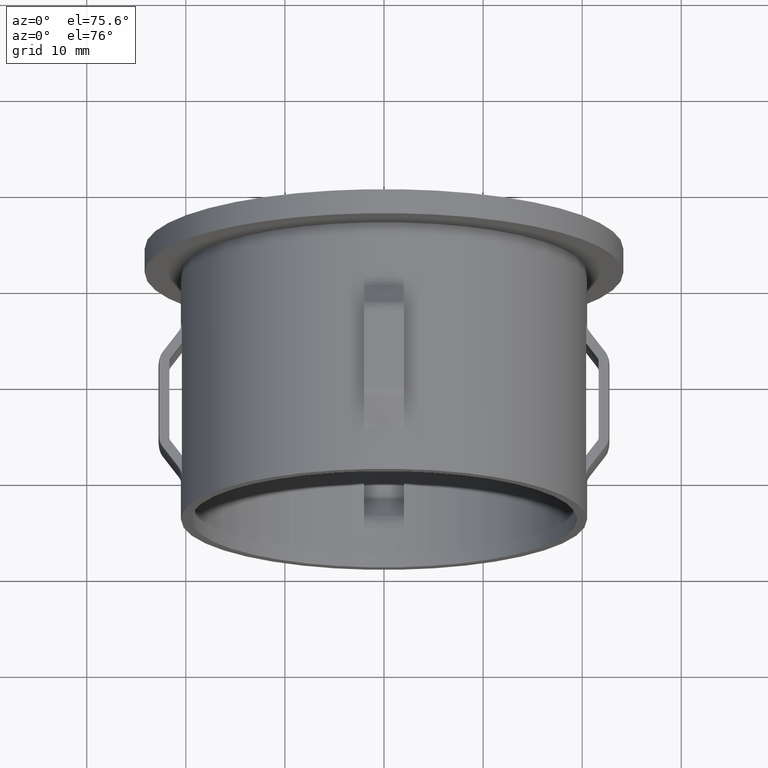
[diagram: clean part render]
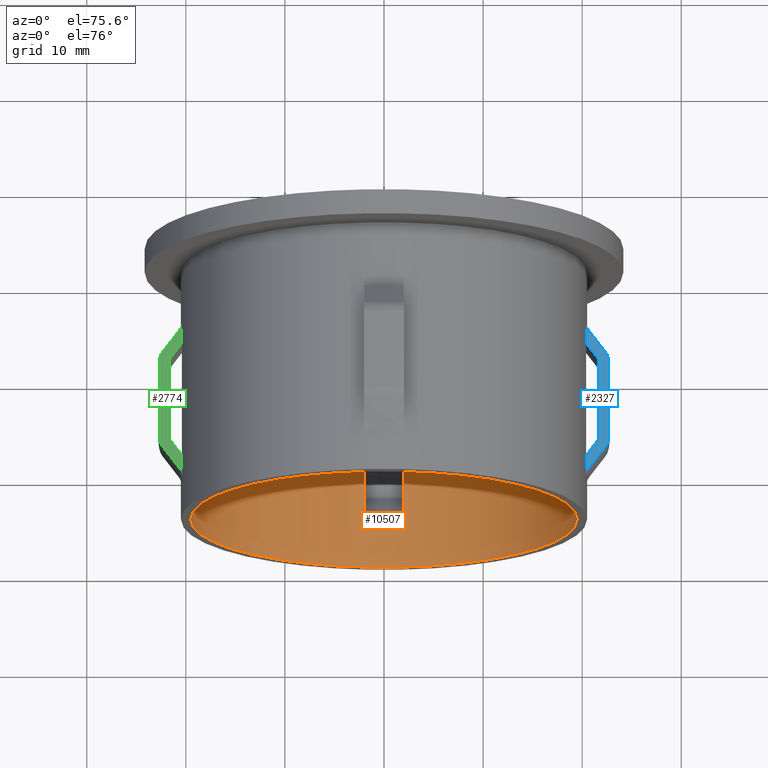
[diagram: same view with three faces highlighted in distinct colors, each labeled with its STEP entity id]
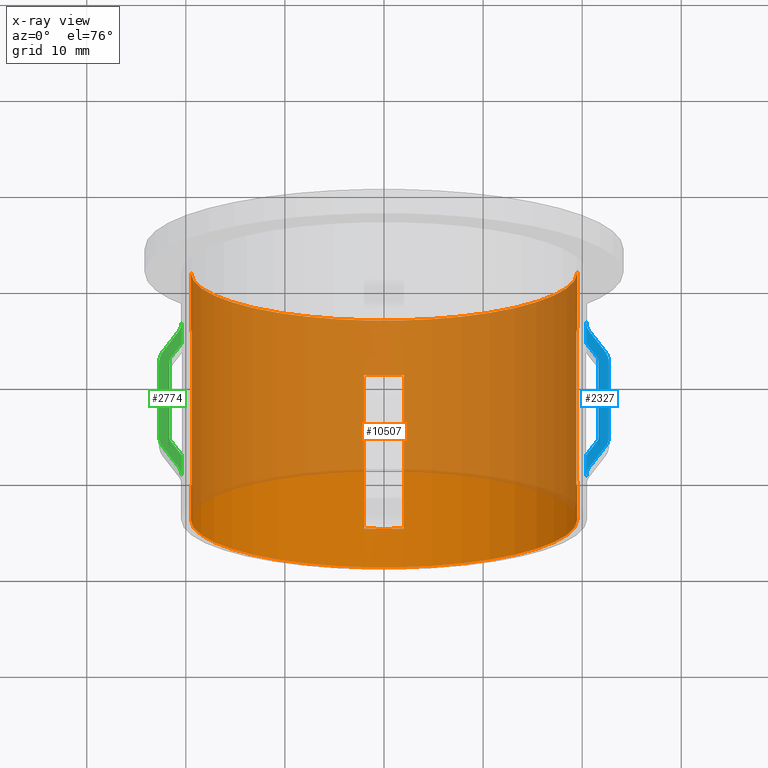
[diagram: x-ray of the same camera — body ghosted, the three highlighted faces saturated]
A machine part, auxiliary view with three faces highlighted in distinct colors.
The next image is the same camera in x-ray (body ghosted, the three faces saturated) — at least one of them is partly hidden behind the body in this view.
Their STEP definitions:

[orange] entity #10507 — the highlighted cylindrical surface (partial cylindrical patch) has radius 19.5 mm, axis along (-0, 1, -0).
#538 = CARTESIAN_POINT ( 'NONE',  ( 19.50000000000000000, 25.69999999999999900, 2.388061258337338900E-015 ) ) ;
#551 = CARTESIAN_POINT ( 'NONE',  ( 19.39716474127082800, 19.99999999999998900, -2.000000000000000000 ) ) ;
#614 = VERTEX_POINT ( 'NONE', #2845 ) ;
#674 = CARTESIAN_POINT ( 'NONE',  ( 19.50000000000000400, -1.261611902813349400E-016, 2.388061258337339300E-015 ) ) ;
#801 = DIRECTION ( 'NONE',  ( -1.714505518806297100E-016, 1.000000000000000000, -0.0000000000000000000 ) ) ;
#834 = DIRECTION ( 'NONE',  ( -1.000000000000000000, -1.779203565104417600E-016, 0.0000000000000000000 ) ) ;
#980 = LINE ( 'NONE', #4173, #5303 ) ;
#1133 = AXIS2_PLACEMENT_3D ( 'NONE', #2758, #6013, #10841 ) ;
#1199 = DIRECTION ( 'NONE',  ( -1.714505518806297100E-016, 1.000000000000000000, -0.0000000000000000000 ) ) ;
#1374 = VERTEX_POINT ( 'NONE', #14369 ) ;
#1749 = EDGE_CURVE ( 'NONE', #11266, #10089, #8802, .T. ) ;
#1889 = EDGE_CURVE ( 'NONE', #11266, #614, #13156, .T. ) ;
#1956 = AXIS2_PLACEMENT_3D ( 'NONE', #4652, #1199, #3640 ) ;
#2023 = VERTEX_POINT ( 'NONE', #674 ) ;
#2106 = LINE ( 'NONE', #8777, #6787 ) ;
#2178 = DIRECTION ( 'NONE',  ( -1.714505518806297100E-016, 1.000000000000000000, -0.0000000000000000000 ) ) ;
#2261 = DIRECTION ( 'NONE',  ( -1.714505518806297100E-016, 1.000000000000000000, -0.0000000000000000000 ) ) ;
#2274 = ORIENTED_EDGE ( 'NONE', *, *, #3721, .T. ) ;
#2276 = VECTOR ( 'NONE', #801, 1000.000000000000000 ) ;
#2405 = CARTESIAN_POINT ( 'NONE',  ( -19.50000000000000400, 28.19999999999999600, 0.0000000000000000000 ) ) ;
#2463 = VECTOR ( 'NONE', #8257, 1000.000000000000000 ) ;
#2498 = VERTEX_POINT ( 'NONE', #4810 ) ;
#2657 = EDGE_CURVE ( 'NONE', #13935, #6514, #13874, .T. ) ;
#2758 = CARTESIAN_POINT ( 'NONE',  ( 4.589976203204287100E-015, -3.469446951953614200E-015, 0.0000000000000000000 ) ) ;
#2845 = CARTESIAN_POINT ( 'NONE',  ( 2.000000000000007500, 3.999999999999996400, -19.39716474127082400 ) ) ;
#2886 = LINE ( 'NONE', #8409, #12499 ) ;
#2948 = EDGE_CURVE ( 'NONE', #11167, #5412, #980, .T. ) ;
#3082 = CIRCLE ( 'NONE', #1133, 19.50000000000000000 ) ;
#3362 = CARTESIAN_POINT ( 'NONE',  ( -2.449293598294708900E-016, 28.19999999999999900, 0.0000000000000000000 ) ) ;
#3411 = DIRECTION ( 'NONE',  ( -1.000000000000000000, -1.779203565104417100E-016, 0.0000000000000000000 ) ) ;
#3460 = VECTOR ( 'NONE', #11506, 1000.000000000000000 ) ;
#3494 = DIRECTION ( 'NONE',  ( -1.714505518806297100E-016, 1.000000000000000000, -0.0000000000000000000 ) ) ;
#3548 = CARTESIAN_POINT ( 'NONE',  ( -19.39716474127083100, 19.99999999999998900, -2.000000000000000900 ) ) ;
#3640 = DIRECTION ( 'NONE',  ( -1.000000000000000000, -1.779203565104417600E-016, 0.0000000000000000000 ) ) ;
#3721 = EDGE_CURVE ( 'NONE', #13804, #10474, #2106, .T. ) ;
#4002 = CIRCLE ( 'NONE', #9549, 19.50000000000000700 ) ;
#4046 = AXIS2_PLACEMENT_3D ( 'NONE', #14844, #10160, #834 ) ;
#4080 = ORIENTED_EDGE ( 'NONE', *, *, #1889, .T. ) ;
#4173 = CARTESIAN_POINT ( 'NONE',  ( 19.39716474127082800, 51.72464896776082800, -2.000000000000000000 ) ) ;
#4393 = EDGE_CURVE ( 'NONE', #6514, #12847, #11120, .T. ) ;
#4449 = CARTESIAN_POINT ( 'NONE',  ( -1.999999999999996200, 19.99999999999998900, -19.39716474127082400 ) ) ;
#4534 = VERTEX_POINT ( 'NONE', #5064 ) ;
#4652 = CARTESIAN_POINT ( 'NONE',  ( 3.904173995681768100E-015, 3.999999999999996400, 0.0000000000000000000 ) ) ;
#4775 = DIRECTION ( 'NONE',  ( -1.714505518806297100E-016, 1.000000000000000000, -0.0000000000000000000 ) ) ;
#4810 = CARTESIAN_POINT ( 'NONE',  ( 19.50000000000000400, 4.000000000000000000, 2.388061258337339300E-015 ) ) ;
#4848 = EDGE_CURVE ( 'NONE', #2498, #5412, #14956, .T. ) ;
#5030 = ORIENTED_EDGE ( 'NONE', *, *, #2948, .F. ) ;
#5064 = CARTESIAN_POINT ( 'NONE',  ( -1.999999999999993100, 3.999999999999996400, -19.39716474127082400 ) ) ;
#5303 = VECTOR ( 'NONE', #6478, 1000.000000000000000 ) ;
#5412 = VERTEX_POINT ( 'NONE', #13146 ) ;
#5446 = CARTESIAN_POINT ( 'NONE',  ( 19.50000000000000400, 28.20000000000000300, 2.388061258337339300E-015 ) ) ;
#5535 = DIRECTION ( 'NONE',  ( -1.000000000000000000, -1.779203565104417600E-016, 0.0000000000000000000 ) ) ;
#5831 = AXIS2_PLACEMENT_3D ( 'NONE', #11622, #4775, #6231 ) ;
#5957 = DIRECTION ( 'NONE',  ( -1.714505518806297100E-016, 1.000000000000000000, -0.0000000000000000000 ) ) ;
#5985 = EDGE_CURVE ( 'NONE', #10514, #1374, #8743, .T. ) ;
#6013 = DIRECTION ( 'NONE',  ( -1.714505518806297100E-016, 1.000000000000000000, -0.0000000000000000000 ) ) ;
#6231 = DIRECTION ( 'NONE',  ( -1.000000000000000000, -1.779203565104416900E-016, 0.0000000000000000000 ) ) ;
#6395 = CARTESIAN_POINT ( 'NONE',  ( 1.160965165591693700E-015, 19.99999999999999300, 0.0000000000000000000 ) ) ;
#6464 = ORIENTED_EDGE ( 'NONE', *, *, #11399, .T. ) ;
#6478 = DIRECTION ( 'NONE',  ( 0.0000000000000000000, -1.000000000000000000, 0.0000000000000000000 ) ) ;
#6514 = VERTEX_POINT ( 'NONE', #538 ) ;
#6532 = DIRECTION ( 'NONE',  ( 0.0000000000000000000, -1.000000000000000000, 0.0000000000000000000 ) ) ;
#6543 = DIRECTION ( 'NONE',  ( -1.714505518806297100E-016, 1.000000000000000000, -0.0000000000000000000 ) ) ;
#6649 = ORIENTED_EDGE ( 'NONE', *, *, #4848, .T. ) ;
#6787 = VECTOR ( 'NONE', #6532, 1000.000000000000000 ) ;
#6863 = CIRCLE ( 'NONE', #4046, 19.50000000000000000 ) ;
#7063 = ORIENTED_EDGE ( 'NONE', *, *, #4393, .T. ) ;
#7339 = DIRECTION ( 'NONE',  ( 0.0000000000000000000, -1.000000000000000000, 0.0000000000000000000 ) ) ;
#7369 = AXIS2_PLACEMENT_3D ( 'NONE', #12573, #2178, #5535 ) ;
#7428 = CARTESIAN_POINT ( 'NONE',  ( 2.000000000000008400, 19.99999999999999300, -19.39716474127083100 ) ) ;
#7609 = FACE_BOUND ( 'NONE', #8668, .T. ) ;
#7748 = CIRCLE ( 'NONE', #12527, 19.50000000000000700 ) ;
#8084 = EDGE_CURVE ( 'NONE', #9249, #12847, #8521, .T. ) ;
#8257 = DIRECTION ( 'NONE',  ( 0.0000000000000000000, -1.000000000000000000, 0.0000000000000000000 ) ) ;
#8326 = DIRECTION ( 'NONE',  ( -1.714505518806297100E-016, 1.000000000000000000, -0.0000000000000000000 ) ) ;
#8390 = DIRECTION ( 'NONE',  ( -1.000000000000000000, -1.779203565104417600E-016, 0.0000000000000000000 ) ) ;
#8409 = CARTESIAN_POINT ( 'NONE',  ( -1.999999999999996200, 51.72464896776082800, -19.39716474127082400 ) ) ;
#8521 = LINE ( 'NONE', #2405, #3460 ) ;
#8668 = EDGE_LOOP ( 'NONE', ( #4080, #8991, #9754, #10942 ) ) ;
#8743 = LINE ( 'NONE', #14756, #14017 ) ;
#8768 = CARTESIAN_POINT ( 'NONE',  ( -19.50000000000000000, 25.69999999999999200, 0.0000000000000000000 ) ) ;
#8777 = CARTESIAN_POINT ( 'NONE',  ( -19.39716474127082100, 51.72464896776082800, -2.000000000000000000 ) ) ;
#8802 = CIRCLE ( 'NONE', #5831, 19.50000000000000700 ) ;
#8991 = ORIENTED_EDGE ( 'NONE', *, *, #9728, .T. ) ;
#9055 = EDGE_CURVE ( 'NONE', #13804, #9249, #4002, .T. ) ;
#9135 = CARTESIAN_POINT ( 'NONE',  ( -19.39716474127082100, 3.999999999999993300, -1.999999999999999600 ) ) ;
#9249 = VERTEX_POINT ( 'NONE', #13771 ) ;
#9273 = AXIS2_PLACEMENT_3D ( 'NONE', #9406, #5957, #8390 ) ;
#9406 = CARTESIAN_POINT ( 'NONE',  ( 3.904173995681768100E-015, 3.999999999999996400, 0.0000000000000000000 ) ) ;
#9549 = AXIS2_PLACEMENT_3D ( 'NONE', #6395, #8326, #11071 ) ;
#9712 = ORIENTED_EDGE ( 'NONE', *, *, #8084, .F. ) ;
#9728 = EDGE_CURVE ( 'NONE', #614, #4534, #13605, .T. ) ;
#9754 = ORIENTED_EDGE ( 'NONE', *, *, #12777, .F. ) ;
#10038 = DIRECTION ( 'NONE',  ( -1.000000000000000000, -1.779203565104416900E-016, 0.0000000000000000000 ) ) ;
#10089 = VERTEX_POINT ( 'NONE', #4449 ) ;
#10091 = ORIENTED_EDGE ( 'NONE', *, *, #9055, .F. ) ;
#10160 = DIRECTION ( 'NONE',  ( -1.714505518806297100E-016, 1.000000000000000000, -0.0000000000000000000 ) ) ;
#10173 = DIRECTION ( 'NONE',  ( -1.714505518806297100E-016, 1.000000000000000000, -0.0000000000000000000 ) ) ;
#10474 = VERTEX_POINT ( 'NONE', #9135 ) ;
#10507 = ADVANCED_FACE ( 'NONE', ( #7609, #14893 ), #12159, .F. ) ;
#10514 = VERTEX_POINT ( 'NONE', #13861 ) ;
#10535 = AXIS2_PLACEMENT_3D ( 'NONE', #3362, #2261, #3411 ) ;
#10841 = DIRECTION ( 'NONE',  ( -1.000000000000000000, -1.714505518806296900E-016, 0.0000000000000000000 ) ) ;
#10942 = ORIENTED_EDGE ( 'NONE', *, *, #1749, .F. ) ;
#11071 = DIRECTION ( 'NONE',  ( -1.000000000000000000, -1.779203565104416900E-016, 0.0000000000000000000 ) ) ;
#11120 = CIRCLE ( 'NONE', #7369, 19.50000000000000000 ) ;
#11167 = VERTEX_POINT ( 'NONE', #551 ) ;
#11266 = VERTEX_POINT ( 'NONE', #7428 ) ;
#11399 = EDGE_CURVE ( 'NONE', #10474, #1374, #6863, .T. ) ;
#11506 = DIRECTION ( 'NONE',  ( -1.714505518806297100E-016, 1.000000000000000000, -0.0000000000000000000 ) ) ;
#11622 = CARTESIAN_POINT ( 'NONE',  ( 1.160965165591693700E-015, 19.99999999999999300, 0.0000000000000000000 ) ) ;
#11990 = EDGE_CURVE ( 'NONE', #2023, #10514, #3082, .T. ) ;
#12127 = ORIENTED_EDGE ( 'NONE', *, *, #5985, .F. ) ;
#12159 = CYLINDRICAL_SURFACE ( 'NONE', #10535, 19.50000000000000400 ) ;
#12466 = EDGE_CURVE ( 'NONE', #13935, #11167, #7748, .T. ) ;
#12499 = VECTOR ( 'NONE', #7339, 1000.000000000000000 ) ;
#12527 = AXIS2_PLACEMENT_3D ( 'NONE', #14731, #6543, #10038 ) ;
#12573 = CARTESIAN_POINT ( 'NONE',  ( 1.836970198721037800E-016, 25.69999999999999600, 0.0000000000000000000 ) ) ;
#12668 = ORIENTED_EDGE ( 'NONE', *, *, #11990, .F. ) ;
#12777 = EDGE_CURVE ( 'NONE', #10089, #4534, #2886, .T. ) ;
#12829 = CARTESIAN_POINT ( 'NONE',  ( 19.50000000000000400, 28.20000000000000300, 2.388061258337339300E-015 ) ) ;
#12847 = VERTEX_POINT ( 'NONE', #8768 ) ;
#12854 = LINE ( 'NONE', #12829, #13757 ) ;
#13054 = EDGE_CURVE ( 'NONE', #2023, #2498, #12854, .T. ) ;
#13127 = ORIENTED_EDGE ( 'NONE', *, *, #2657, .T. ) ;
#13146 = CARTESIAN_POINT ( 'NONE',  ( 19.39716474127082800, 4.000000000000000000, -1.999999999999999600 ) ) ;
#13156 = LINE ( 'NONE', #14104, #2463 ) ;
#13173 = CARTESIAN_POINT ( 'NONE',  ( 19.50000000000000700, 19.99999999999999600, 2.388061258337339700E-015 ) ) ;
#13605 = CIRCLE ( 'NONE', #9273, 19.50000000000000000 ) ;
#13757 = VECTOR ( 'NONE', #3494, 1000.000000000000000 ) ;
#13771 = CARTESIAN_POINT ( 'NONE',  ( -19.50000000000000700, 19.99999999999998900, 0.0000000000000000000 ) ) ;
#13804 = VERTEX_POINT ( 'NONE', #3548 ) ;
#13861 = CARTESIAN_POINT ( 'NONE',  ( -19.49999999999999600, -6.812732713625892700E-015, 0.0000000000000000000 ) ) ;
#13874 = LINE ( 'NONE', #5446, #2276 ) ;
#13933 = ORIENTED_EDGE ( 'NONE', *, *, #12466, .F. ) ;
#13935 = VERTEX_POINT ( 'NONE', #13173 ) ;
#13975 = ORIENTED_EDGE ( 'NONE', *, *, #13054, .T. ) ;
#14017 = VECTOR ( 'NONE', #10173, 1000.000000000000000 ) ;
#14104 = CARTESIAN_POINT ( 'NONE',  ( 2.000000000000004900, 51.72464896776082800, -19.39716474127082400 ) ) ;
#14369 = CARTESIAN_POINT ( 'NONE',  ( -19.49999999999999600, 3.999999999999993300, 0.0000000000000000000 ) ) ;
#14481 = EDGE_LOOP ( 'NONE', ( #12668, #13975, #6649, #5030, #13933, #13127, #7063, #9712, #10091, #2274, #6464, #12127 ) ) ;
#14731 = CARTESIAN_POINT ( 'NONE',  ( 1.160965165591693700E-015, 19.99999999999999300, 0.0000000000000000000 ) ) ;
#14756 = CARTESIAN_POINT ( 'NONE',  ( -19.50000000000000400, 28.19999999999999600, 0.0000000000000000000 ) ) ;
#14844 = CARTESIAN_POINT ( 'NONE',  ( 3.904173995681768100E-015, 3.999999999999996400, 0.0000000000000000000 ) ) ;
#14893 = FACE_OUTER_BOUND ( 'NONE', #14481, .T. ) ;
#14956 = CIRCLE ( 'NONE', #1956, 19.50000000000000000 ) ;

[blue] entity #2327 — the highlighted planar face has unit normal (0, 0, -1).
#156 = VERTEX_POINT ( 'NONE', #10149 ) ;
#179 = VERTEX_POINT ( 'NONE', #13265 ) ;
#610 = CARTESIAN_POINT ( 'NONE',  ( 21.55742331542138100, 7.699999999996219200, 2.000000000000000000 ) ) ;
#703 = CARTESIAN_POINT ( 'NONE',  ( 21.64902585376468400, 7.892475103555328900, 1.999999999999999600 ) ) ;
#777 = ORIENTED_EDGE ( 'NONE', *, *, #8845, .F. ) ;
#906 = CARTESIAN_POINT ( 'NONE',  ( 21.65785077056354900, 16.00000000000000000, 2.000000000000000000 ) ) ;
#940 = CARTESIAN_POINT ( 'NONE',  ( 21.55742331542138100, 7.699999999996219200, 2.000000000000000000 ) ) ;
#1147 = CARTESIAN_POINT ( 'NONE',  ( 20.40220576310317200, 6.166666666666667900, 2.000000000000000000 ) ) ;
#1187 = AXIS2_PLACEMENT_3D ( 'NONE', #3353, #12603, #11454 ) ;
#1247 = VERTEX_POINT ( 'NONE', #4541 ) ;
#1303 = CARTESIAN_POINT ( 'NONE',  ( 20.42794527544645400, 19.68000063472318900, 2.000000000000000000 ) ) ;
#1410 = ORIENTED_EDGE ( 'NONE', *, *, #14120, .T. ) ;
#1505 = VERTEX_POINT ( 'NONE', #9537 ) ;
#1552 = VERTEX_POINT ( 'NONE', #14636 ) ;
#1560 = CARTESIAN_POINT ( 'NONE',  ( 20.91337411212616700, 6.845021281521883200, 2.000000000000000000 ) ) ;
#1694 = EDGE_LOOP ( 'NONE', ( #1410, #14439, #9007, #9539, #8329, #12087, #2776, #7500, #777, #8673, #7963, #2323, #6545, #6849 ) ) ;
#1851 = B_SPLINE_CURVE_WITH_KNOTS ( 'NONE', 3,
 ( #14381, #5186, #13268, #9846, #7467, #9485, #6351 ),
 .UNSPECIFIED., .F., .F.,
 ( 4, 3, 4 ),
 ( 0.003806437934269985800, 0.004972796673166770400, 0.005726239633145618600 ),
 .UNSPECIFIED. ) ;
#1950 = CARTESIAN_POINT ( 'NONE',  ( 20.40220576310317200, 17.83333333333333900, 2.000000000000000000 ) ) ;
#2121 = CARTESIAN_POINT ( 'NONE',  ( 22.63607172904885800, 16.32024693304128200, 2.000000000000000000 ) ) ;
#2266 = LINE ( 'NONE', #4209, #8032 ) ;
#2323 = ORIENTED_EDGE ( 'NONE', *, *, #6679, .F. ) ;
#2327 = ADVANCED_FACE ( 'NONE', ( #7686 ), #10284, .F. ) ;
#2609 = LINE ( 'NONE', #5482, #13109 ) ;
#2628 = VERTEX_POINT ( 'NONE', #7486 ) ;
#2644 = EDGE_CURVE ( 'NONE', #1552, #4483, #13500, .T. ) ;
#2647 = CARTESIAN_POINT ( 'NONE',  ( 21.19193164112334700, 18.45193842219781300, 2.000000000000000000 ) ) ;
#2776 = ORIENTED_EDGE ( 'NONE', *, *, #4768, .T. ) ;
#2847 = CARTESIAN_POINT ( 'NONE',  ( 20.52826029769647300, 6.333941285484220500, 2.000000000000000000 ) ) ;
#2864 = VECTOR ( 'NONE', #8955, 1000.000000000000000 ) ;
#2902 = CARTESIAN_POINT ( 'NONE',  ( 20.46523391683308900, 6.250303308049841400, 2.000000000000000000 ) ) ;
#3325 = CARTESIAN_POINT ( 'NONE',  ( 21.33323755193674700, 5.735635365409479800, 2.000000000000000000 ) ) ;
#3334 = CARTESIAN_POINT ( 'NONE',  ( 21.65785077056354900, 7.999999999999992900, 2.000000000000000000 ) ) ;
#3353 = CARTESIAN_POINT ( 'NONE',  ( -4.197876322043505600E-017, 20.00000000000000000, 1.999999999999999600 ) ) ;
#3376 = CARTESIAN_POINT ( 'NONE',  ( 20.40220576310316100, 4.160430435202034300, 2.000000000000000000 ) ) ;
#3483 = CARTESIAN_POINT ( 'NONE',  ( 20.40220576310317200, 3.999999999999989800, 2.000000000000000000 ) ) ;
#3613 = B_SPLINE_CURVE_WITH_KNOTS ( 'NONE', 3,
 ( #906, #4408, #6869, #5550, #9115, #12631 ),
 .UNSPECIFIED., .F., .F.,
 ( 4, 2, 4 ),
 ( 0.001692098382120553700, 0.001852354271446649100, 0.002012610160772744300 ),
 .UNSPECIFIED. ) ;
#3832 = LINE ( 'NONE', #7622, #13456 ) ;
#4008 = CARTESIAN_POINT ( 'NONE',  ( 22.16826365679140700, 17.15560015973014500, 2.000000000000000000 ) ) ;
#4205 = CARTESIAN_POINT ( 'NONE',  ( 22.45764683650946100, 7.228701103503283300, 2.000000000000000000 ) ) ;
#4209 = CARTESIAN_POINT ( 'NONE',  ( 20.40220576310317200, 20.00000000000000000, 2.000000000000000000 ) ) ;
#4247 = CARTESIAN_POINT ( 'NONE',  ( 22.66191739460718300, 7.999999999999994700, 2.000000000000000000 ) ) ;
#4271 = CARTESIAN_POINT ( 'NONE',  ( 22.36073567662775100, 16.90000000000019400, 2.000000000000000000 ) ) ;
#4352 = B_SPLINE_CURVE_WITH_KNOTS ( 'NONE', 3,
 ( #9556, #2647, #7379, #4008, #12114, #7327, #5154 ),
 .UNSPECIFIED., .F., .F.,
 ( 4, 3, 4 ),
 ( 0.003059433329653279400, 0.005493742908595071800, 0.005813706827018422600 ),
 .UNSPECIFIED. ) ;
#4408 = CARTESIAN_POINT ( 'NONE',  ( 21.65785077056354500, 16.05400778674589900, 2.000000000000000000 ) ) ;
#4483 = VERTEX_POINT ( 'NONE', #8472 ) ;
#4541 = CARTESIAN_POINT ( 'NONE',  ( 21.55742331541504300, 16.29999999999999700, 2.000000000000000000 ) ) ;
#4551 = CARTESIAN_POINT ( 'NONE',  ( 20.60631286998783900, 4.770854514726180700, 2.000000000000000000 ) ) ;
#4654 = EDGE_CURVE ( 'NONE', #7619, #7323, #9572, .T. ) ;
#4756 = CARTESIAN_POINT ( 'NONE',  ( 20.60732797216653400, 19.22779828702487800, 2.000000000000000000 ) ) ;
#4768 = EDGE_CURVE ( 'NONE', #8620, #9996, #2266, .T. ) ;
#4800 = CARTESIAN_POINT ( 'NONE',  ( 20.40220576310317200, 19.83856221388479600, 2.000000000000000000 ) ) ;
#4852 = CARTESIAN_POINT ( 'NONE',  ( 20.70362287137206200, 19.09999999999999800, 2.000000000000000000 ) ) ;
#5053 = CARTESIAN_POINT ( 'NONE',  ( 21.23541831297532300, 7.272495880075480200, 2.000000000000000000 ) ) ;
#5146 = EDGE_CURVE ( 'NONE', #7323, #179, #2609, .T. ) ;
#5154 = CARTESIAN_POINT ( 'NONE',  ( 22.36073567662775100, 16.90000000000019400, 2.000000000000000000 ) ) ;
#5186 = CARTESIAN_POINT ( 'NONE',  ( 21.32351191669025100, 16.61054823960654000, 2.000000000000000000 ) ) ;
#5290 = CARTESIAN_POINT ( 'NONE',  ( 20.40220576310317200, 3.999999999999989800, 2.000000000000000000 ) ) ;
#5349 = DIRECTION ( 'NONE',  ( -0.0000000000000000000, -1.000000000000000000, -0.0000000000000000000 ) ) ;
#5394 = CARTESIAN_POINT ( 'NONE',  ( 22.36073567662746700, 7.099999999999999600, 2.000000000000000000 ) ) ;
#5482 = CARTESIAN_POINT ( 'NONE',  ( 21.65785077056354500, 28.20000000000000300, 2.000000000000000000 ) ) ;
#5518 = CARTESIAN_POINT ( 'NONE',  ( 22.45723750218051900, 16.77184250550834200, 2.000000000000000000 ) ) ;
#5538 = CARTESIAN_POINT ( 'NONE',  ( 20.81933344512792800, 5.053569848368973700, 2.000000000000000000 ) ) ;
#5550 = CARTESIAN_POINT ( 'NONE',  ( 21.61487237669150800, 16.20950376411754600, 2.000000000000000000 ) ) ;
#5633 = B_SPLINE_CURVE_WITH_KNOTS ( 'NONE', 3,
 ( #10256, #7977, #3325, #5538, #6715, #14847, #13730 ),
 .UNSPECIFIED., .F., .F.,
 ( 4, 3, 4 ),
 ( 0.002931752002200940500, 0.005493742840914646300, 0.005686025529221530200 ),
 .UNSPECIFIED. ) ;
#5686 = CARTESIAN_POINT ( 'NONE',  ( 20.70362287137206200, 4.899999999999996800, 2.000000000000000000 ) ) ;
#5911 = CARTESIAN_POINT ( 'NONE',  ( 22.66191739460720800, 16.16161085762216500, 2.000000000000000000 ) ) ;
#6351 = CARTESIAN_POINT ( 'NONE',  ( 20.40220576310317200, 17.83333333333333900, 2.000000000000000000 ) ) ;
#6545 = ORIENTED_EDGE ( 'NONE', *, *, #10891, .F. ) ;
#6668 = VERTEX_POINT ( 'NONE', #1950 ) ;
#6679 = EDGE_CURVE ( 'NONE', #2628, #1505, #8529, .T. ) ;
#6715 = CARTESIAN_POINT ( 'NONE',  ( 20.78076388251406200, 5.002379425257530000, 2.000000000000000000 ) ) ;
#6849 = ORIENTED_EDGE ( 'NONE', *, *, #9807, .F. ) ;
#6861 = CARTESIAN_POINT ( 'NONE',  ( 20.53145604125086300, 4.628772232002462200, 2.000000000000000000 ) ) ;
#6869 = CARTESIAN_POINT ( 'NONE',  ( 21.64925104805562500, 16.10685186972002800, 2.000000000000000000 ) ) ;
#7009 = CARTESIAN_POINT ( 'NONE',  ( 20.42867507051472800, 4.322993792427420000, 2.000000000000000000 ) ) ;
#7275 = EDGE_CURVE ( 'NONE', #179, #1247, #3613, .T. ) ;
#7323 = VERTEX_POINT ( 'NONE', #3334 ) ;
#7327 = CARTESIAN_POINT ( 'NONE',  ( 22.29657974719772500, 16.98520111537147100, 2.000000000000000000 ) ) ;
#7379 = CARTESIAN_POINT ( 'NONE',  ( 21.68013897667760400, 17.80380040649287900, 2.000000000000000000 ) ) ;
#7467 = CARTESIAN_POINT ( 'NONE',  ( 20.70449491335497800, 17.43218266857860500, 2.000000000000000000 ) ) ;
#7486 = CARTESIAN_POINT ( 'NONE',  ( 22.36073567662775100, 16.90000000000019400, 2.000000000000000000 ) ) ;
#7500 = ORIENTED_EDGE ( 'NONE', *, *, #10109, .F. ) ;
#7553 = EDGE_CURVE ( 'NONE', #1505, #1552, #3832, .T. ) ;
#7619 = VERTEX_POINT ( 'NONE', #940 ) ;
#7622 = CARTESIAN_POINT ( 'NONE',  ( 22.66191739460718300, 20.00000000000000000, 2.000000000000000000 ) ) ;
#7686 = FACE_OUTER_BOUND ( 'NONE', #1694, .T. ) ;
#7783 = CARTESIAN_POINT ( 'NONE',  ( 22.66191739460720500, 7.840029269341391300, 2.000000000000000000 ) ) ;
#7958 = B_SPLINE_CURVE_WITH_KNOTS ( 'NONE', 3,
 ( #5686, #4551, #6861, #7009, #3376, #3483 ),
 .UNSPECIFIED., .F., .F.,
 ( 4, 2, 4 ),
 ( 0.008558704629883250000, 0.009038123160744553400, 0.009517541691605856800 ),
 .UNSPECIFIED. ) ;
#7963 = ORIENTED_EDGE ( 'NONE', *, *, #7553, .F. ) ;
#7977 = CARTESIAN_POINT ( 'NONE',  ( 21.84703120243186800, 6.417784115017741300, 2.000000000000000000 ) ) ;
#8032 = VECTOR ( 'NONE', #5349, 1000.000000000000000 ) ;
#8189 = CARTESIAN_POINT ( 'NONE',  ( 20.53065791405793000, 19.37279111172832600, 2.000000000000000000 ) ) ;
#8329 = ORIENTED_EDGE ( 'NONE', *, *, #4654, .F. ) ;
#8472 = CARTESIAN_POINT ( 'NONE',  ( 22.36073567662746700, 7.099999999999999600, 2.000000000000000000 ) ) ;
#8529 = B_SPLINE_CURVE_WITH_KNOTS ( 'NONE', 3,
 ( #4271, #5518, #10742, #2121, #5911, #12252 ),
 .UNSPECIFIED., .F., .F.,
 ( 4, 2, 4 ),
 ( 0.008969584436048901000, 0.009448924133632640600, 0.009928263831216380100 ),
 .UNSPECIFIED. ) ;
#8620 = VERTEX_POINT ( 'NONE', #1147 ) ;
#8656 = CARTESIAN_POINT ( 'NONE',  ( 20.40220576310317200, 6.166666666666667900, 2.000000000000000000 ) ) ;
#8673 = ORIENTED_EDGE ( 'NONE', *, *, #2644, .F. ) ;
#8710 = CARTESIAN_POINT ( 'NONE',  ( 21.55742331542138100, 7.699999999996219200, 2.000000000000000000 ) ) ;
#8744 = DIRECTION ( 'NONE',  ( -0.0000000000000000000, -1.000000000000000000, -0.0000000000000000000 ) ) ;
#8754 = CARTESIAN_POINT ( 'NONE',  ( 20.40220576310317200, 20.00000000000000000, 2.000000000000000000 ) ) ;
#8815 = CARTESIAN_POINT ( 'NONE',  ( 21.65785077056354900, 7.999999999999992900, 2.000000000000000000 ) ) ;
#8845 = EDGE_CURVE ( 'NONE', #4483, #12305, #5633, .T. ) ;
#8955 = DIRECTION ( 'NONE',  ( -0.0000000000000000000, -1.000000000000000000, -0.0000000000000000000 ) ) ;
#9007 = ORIENTED_EDGE ( 'NONE', *, *, #7275, .F. ) ;
#9081 = EDGE_CURVE ( 'NONE', #1247, #6668, #1851, .T. ) ;
#9115 = CARTESIAN_POINT ( 'NONE',  ( 21.58998306488816600, 16.25677263726337100, 2.000000000000000000 ) ) ;
#9485 = CARTESIAN_POINT ( 'NONE',  ( 20.55335543411380100, 17.63276184136687900, 2.000000000000000000 ) ) ;
#9537 = CARTESIAN_POINT ( 'NONE',  ( 22.66191739460718300, 15.99999999999999300, 2.000000000000000000 ) ) ;
#9539 = ORIENTED_EDGE ( 'NONE', *, *, #5146, .F. ) ;
#9556 = CARTESIAN_POINT ( 'NONE',  ( 20.70362287137206200, 19.09999999999999800, 2.000000000000000000 ) ) ;
#9572 = B_SPLINE_CURVE_WITH_KNOTS ( 'NONE', 3,
 ( #610, #11090, #12323, #703, #9970, #8815 ),
 .UNSPECIFIED., .F., .F.,
 ( 4, 2, 4 ),
 ( 0.001121337706906929300, 0.001281509784580073600, 0.001441681862253220400 ),
 .UNSPECIFIED. ) ;
#9807 = EDGE_CURVE ( 'NONE', #11430, #156, #10847, .T. ) ;
#9846 = CARTESIAN_POINT ( 'NONE',  ( 20.85562484822869300, 17.23159630508063200, 2.000000000000000000 ) ) ;
#9934 = CARTESIAN_POINT ( 'NONE',  ( 20.70362287137206200, 4.899999999999996800, 2.000000000000000000 ) ) ;
#9970 = CARTESIAN_POINT ( 'NONE',  ( 21.65785077056355200, 7.946598282119949500, 1.999999999999999600 ) ) ;
#9996 = VERTEX_POINT ( 'NONE', #5290 ) ;
#10109 = EDGE_CURVE ( 'NONE', #12305, #9996, #7958, .T. ) ;
#10149 = CARTESIAN_POINT ( 'NONE',  ( 20.70362287137206200, 19.09999999999999800, 2.000000000000000000 ) ) ;
#10254 = CARTESIAN_POINT ( 'NONE',  ( 20.40220576310316900, 19.99999999999999600, 2.000000000000000400 ) ) ;
#10256 = CARTESIAN_POINT ( 'NONE',  ( 22.36073567662746700, 7.099999999999999600, 2.000000000000000000 ) ) ;
#10284 = PLANE ( 'NONE',  #1187 ) ;
#10451 = LINE ( 'NONE', #8754, #2864 ) ;
#10742 = CARTESIAN_POINT ( 'NONE',  ( 22.53396991080789000, 16.62617009017516900, 2.000000000000000000 ) ) ;
#10847 = B_SPLINE_CURVE_WITH_KNOTS ( 'NONE', 3,
 ( #11696, #4800, #1303, #8189, #4756, #4852 ),
 .UNSPECIFIED., .F., .F.,
 ( 4, 2, 4 ),
 ( 0.008634937635873911300, 0.009114655510066849200, 0.009594373384259788700 ),
 .UNSPECIFIED. ) ;
#10891 = EDGE_CURVE ( 'NONE', #156, #2628, #4352, .T. ) ;
#10936 = CARTESIAN_POINT ( 'NONE',  ( 20.59128495384232200, 6.417580562514557700, 2.000000000000000000 ) ) ;
#11090 = CARTESIAN_POINT ( 'NONE',  ( 21.58958440637104600, 7.742698090963936700, 2.000000000000000000 ) ) ;
#11127 = CARTESIAN_POINT ( 'NONE',  ( 22.53287645610295400, 7.371312875035920700, 2.000000000000000000 ) ) ;
#11201 = B_SPLINE_CURVE_WITH_KNOTS ( 'NONE', 3,
 ( #8656, #2902, #2847, #10936, #1560, #5053, #8710 ),
 .UNSPECIFIED., .F., .F.,
 ( 4, 3, 4 ),
 ( 0.004658617423264509700, 0.004972796847549569400, 0.006578419061400388500 ),
 .UNSPECIFIED. ) ;
#11424 = DIRECTION ( 'NONE',  ( -1.714505518806297100E-016, 1.000000000000000000, -0.0000000000000000000 ) ) ;
#11430 = VERTEX_POINT ( 'NONE', #10254 ) ;
#11454 = DIRECTION ( 'NONE',  ( -1.000000000000000000, 0.0000000000000000000, -2.098938161021753400E-017 ) ) ;
#11696 = CARTESIAN_POINT ( 'NONE',  ( 20.40220576310316900, 19.99999999999999600, 2.000000000000000400 ) ) ;
#12087 = ORIENTED_EDGE ( 'NONE', *, *, #14009, .F. ) ;
#12114 = CARTESIAN_POINT ( 'NONE',  ( 22.23242241944547700, 17.07040117783342100, 2.000000000000000000 ) ) ;
#12252 = CARTESIAN_POINT ( 'NONE',  ( 22.66191739460718300, 15.99999999999999300, 2.000000000000000000 ) ) ;
#12305 = VERTEX_POINT ( 'NONE', #9934 ) ;
#12323 = CARTESIAN_POINT ( 'NONE',  ( 21.61509641332175500, 7.791165805948045500, 2.000000000000000400 ) ) ;
#12603 = DIRECTION ( 'NONE',  ( 2.098938161021753400E-017, 0.0000000000000000000, -1.000000000000000000 ) ) ;
#12631 = CARTESIAN_POINT ( 'NONE',  ( 21.55742331541504300, 16.29999999999999700, 2.000000000000000000 ) ) ;
#13109 = VECTOR ( 'NONE', #11424, 1000.000000000000000 ) ;
#13265 = CARTESIAN_POINT ( 'NONE',  ( 21.65785077056354900, 16.00000000000000000, 2.000000000000000000 ) ) ;
#13268 = CARTESIAN_POINT ( 'NONE',  ( 21.08957981169793400, 16.92108088413633000, 2.000000000000000000 ) ) ;
#13456 = VECTOR ( 'NONE', #8744, 1000.000000000000000 ) ;
#13500 = B_SPLINE_CURVE_WITH_KNOTS ( 'NONE', 3,
 ( #4247, #7783, #14801, #11127, #4205, #5394 ),
 .UNSPECIFIED., .F., .F.,
 ( 4, 2, 4 ),
 ( 0.008872696262132408900, 0.009352479114629575300, 0.009832261967126741700 ),
 .UNSPECIFIED. ) ;
#13730 = CARTESIAN_POINT ( 'NONE',  ( 20.70362287137206200, 4.899999999999996800, 2.000000000000000000 ) ) ;
#14009 = EDGE_CURVE ( 'NONE', #8620, #7619, #11201, .T. ) ;
#14120 = EDGE_CURVE ( 'NONE', #11430, #6668, #10451, .T. ) ;
#14381 = CARTESIAN_POINT ( 'NONE',  ( 21.55742331541504300, 16.29999999999999700, 2.000000000000000000 ) ) ;
#14439 = ORIENTED_EDGE ( 'NONE', *, *, #9081, .F. ) ;
#14636 = CARTESIAN_POINT ( 'NONE',  ( 22.66191739460718300, 7.999999999999994700, 2.000000000000000000 ) ) ;
#14801 = CARTESIAN_POINT ( 'NONE',  ( 22.63576449502781400, 7.678083568773220500, 2.000000000000000000 ) ) ;
#14847 = CARTESIAN_POINT ( 'NONE',  ( 20.74219369475790800, 4.951189473155043400, 2.000000000000000000 ) ) ;

[green] entity #2774 — the highlighted planar face has unit normal (0, 0, -1).
#126 = B_SPLINE_CURVE_WITH_KNOTS ( 'NONE', 3,
 ( #10766, #1502, #9695, #6197, #14338, #7366, #2788 ),
 .UNSPECIFIED., .F., .F.,
 ( 4, 3, 4 ),
 ( 0.003367174421853518800, 0.004972796687409687100, 0.005286976121812324600 ),
 .UNSPECIFIED. ) ;
#257 = CARTESIAN_POINT ( 'NONE',  ( -22.66191739460718300, 15.99999999999999300, 2.000000000000000000 ) ) ;
#399 = EDGE_CURVE ( 'NONE', #10135, #8478, #5717, .T. ) ;
#785 = CARTESIAN_POINT ( 'NONE',  ( -20.53067805272776900, 19.37303846685356800, 2.000000000000000000 ) ) ;
#932 = CARTESIAN_POINT ( 'NONE',  ( -21.48690158925611400, 16.39362689476468300, 2.000000000000000000 ) ) ;
#1155 = CARTESIAN_POINT ( 'NONE',  ( -20.70362287137206200, 19.09999999999999100, 2.000000000000000000 ) ) ;
#1411 = CARTESIAN_POINT ( 'NONE',  ( -22.66191739460719000, 16.15997073065860000, 2.000000000000000000 ) ) ;
#1502 = CARTESIAN_POINT ( 'NONE',  ( -21.23541831297500000, 7.272495880075050300, 2.000000000000000000 ) ) ;
#1524 = VERTEX_POINT ( 'NONE', #1759 ) ;
#1656 = B_SPLINE_CURVE_WITH_KNOTS ( 'NONE', 3,
 ( #12739, #13888, #8144, #2348, #10427, #6973 ),
 .UNSPECIFIED., .F., .F.,
 ( 4, 2, 4 ),
 ( 0.002964423728254266700, 0.003124331397023054800, 0.003284239065791842900 ),
 .UNSPECIFIED. ) ;
#1759 = CARTESIAN_POINT ( 'NONE',  ( -22.66191739460718300, 7.999999999999994700, 2.000000000000000000 ) ) ;
#1804 = CARTESIAN_POINT ( 'NONE',  ( -20.40220576310316500, 17.83333333333333600, 2.000000000000000000 ) ) ;
#1814 = CARTESIAN_POINT ( 'NONE',  ( -20.70362287137206200, 19.09999999999999100, 2.000000000000000000 ) ) ;
#2164 = CARTESIAN_POINT ( 'NONE',  ( -21.03134390878812700, 16.99839244633291100, 2.000000000000000000 ) ) ;
#2206 = CARTESIAN_POINT ( 'NONE',  ( -20.40220576310316500, 3.999999999999989800, 2.000000000000000000 ) ) ;
#2217 = CARTESIAN_POINT ( 'NONE',  ( -21.55742331541503600, 16.29999999999999000, 2.000000000000000000 ) ) ;
#2317 = DIRECTION ( 'NONE',  ( -1.000000000000000000, 0.0000000000000000000, -0.0000000000000000000 ) ) ;
#2321 = B_SPLINE_CURVE_WITH_KNOTS ( 'NONE', 3,
 ( #7644, #8770, #14517, #8676, #11001, #9926, #14412 ),
 .UNSPECIFIED., .F., .F.,
 ( 4, 3, 4 ),
 ( 0.004246087564673653300, 0.005493742981669977300, 0.007000361000274047400 ),
 .UNSPECIFIED. ) ;
#2348 = CARTESIAN_POINT ( 'NONE',  ( -21.61478098976090200, 7.790335616721211700, 2.000000000000000000 ) ) ;
#2376 = PLANE ( 'NONE',  #8672 ) ;
#2431 = CARTESIAN_POINT ( 'NONE',  ( -20.40220576310316500, 3.999999999999989800, 2.000000000000000000 ) ) ;
#2627 = CARTESIAN_POINT ( 'NONE',  ( -20.40220576310316500, 17.83333333333333600, 2.000000000000000000 ) ) ;
#2774 = ADVANCED_FACE ( 'NONE', ( #3888 ), #2376, .F. ) ;
#2788 = CARTESIAN_POINT ( 'NONE',  ( -20.40220576310316500, 6.166666666666661600, 2.000000000000000000 ) ) ;
#2944 = EDGE_CURVE ( 'NONE', #5978, #10135, #11711, .T. ) ;
#2954 = CARTESIAN_POINT ( 'NONE',  ( -21.65785077056354200, 7.999999999999992900, 2.000000000000000000 ) ) ;
#2979 = VERTEX_POINT ( 'NONE', #8780 ) ;
#3091 = VECTOR ( 'NONE', #3595, 1000.000000000000000 ) ;
#3345 = VERTEX_POINT ( 'NONE', #4210 ) ;
#3375 = ORIENTED_EDGE ( 'NONE', *, *, #13029, .F. ) ;
#3449 = CARTESIAN_POINT ( 'NONE',  ( -20.53069086360118300, 4.626924771380496200, 2.000000000000000000 ) ) ;
#3507 = B_SPLINE_CURVE_WITH_KNOTS ( 'NONE', 3,
 ( #4414, #13697, #13944, #4608, #9212, #5703, #1155 ),
 .UNSPECIFIED., .F., .F.,
 ( 4, 3, 4 ),
 ( 0.005173778839012771100, 0.005493742765755321400, 0.007928052407990229800 ),
 .UNSPECIFIED. ) ;
#3533 = EDGE_CURVE ( 'NONE', #10197, #14329, #10223, .T. ) ;
#3542 = CARTESIAN_POINT ( 'NONE',  ( -22.36073567662746000, 7.099999999999991700, 2.000000000000000000 ) ) ;
#3590 = EDGE_CURVE ( 'NONE', #14326, #12876, #126, .T. ) ;
#3595 = DIRECTION ( 'NONE',  ( -0.0000000000000000000, -1.000000000000000000, -0.0000000000000000000 ) ) ;
#3728 = CARTESIAN_POINT ( 'NONE',  ( -21.55742331541504000, 7.699999999999992200, 2.000000000000000000 ) ) ;
#3878 = B_SPLINE_CURVE_WITH_KNOTS ( 'NONE', 3,
 ( #2206, #11446, #12595, #3449, #9121, #13846 ),
 .UNSPECIFIED., .F., .F.,
 ( 4, 2, 4 ),
 ( 0.009279241710638893800, 0.009759658690249261400, 0.01024007566985962700 ),
 .UNSPECIFIED. ) ;
#3888 = FACE_OUTER_BOUND ( 'NONE', #10388, .T. ) ;
#4141 = CARTESIAN_POINT ( 'NONE',  ( -20.42849904654646300, 19.67803846206351900, 2.000000000000000000 ) ) ;
#4210 = CARTESIAN_POINT ( 'NONE',  ( -22.66191739460718300, 15.99999999999999300, 2.000000000000000000 ) ) ;
#4283 = EDGE_CURVE ( 'NONE', #4323, #10197, #9768, .T. ) ;
#4323 = VERTEX_POINT ( 'NONE', #1814 ) ;
#4380 = CARTESIAN_POINT ( 'NONE',  ( -21.64926511843252400, 16.10665781212129800, 2.000000000000000000 ) ) ;
#4383 = CARTESIAN_POINT ( 'NONE',  ( -21.41637797909297400, 16.48725237048967800, 2.000000000000000000 ) ) ;
#4414 = CARTESIAN_POINT ( 'NONE',  ( -22.36073567662746300, 16.89999999999999500, 2.000000000000000000 ) ) ;
#4608 = CARTESIAN_POINT ( 'NONE',  ( -22.16826365679139600, 17.15560015973014900, 2.000000000000000000 ) ) ;
#4677 = ORIENTED_EDGE ( 'NONE', *, *, #9793, .T. ) ;
#4906 = CARTESIAN_POINT ( 'NONE',  ( -22.63576449502781100, 16.32191643122676800, 2.000000000000000000 ) ) ;
#5382 = CARTESIAN_POINT ( 'NONE',  ( -20.40220576310314700, 19.83936915238787400, 2.000000000000000000 ) ) ;
#5517 = CARTESIAN_POINT ( 'NONE',  ( -21.65785077056354500, 15.99999999999980600, 2.000000000000000000 ) ) ;
#5703 = CARTESIAN_POINT ( 'NONE',  ( -21.19193164112334300, 18.45193842219780900, 2.000000000000000000 ) ) ;
#5717 = LINE ( 'NONE', #12699, #8639 ) ;
#5847 = CARTESIAN_POINT ( 'NONE',  ( -22.53396991080786500, 7.373829909824792100, 2.000000000000000000 ) ) ;
#5891 = ORIENTED_EDGE ( 'NONE', *, *, #10101, .F. ) ;
#5978 = VERTEX_POINT ( 'NONE', #6617 ) ;
#6088 = B_SPLINE_CURVE_WITH_KNOTS ( 'NONE', 3,
 ( #3542, #9162, #5847, #10321, #13985, #7026 ),
 .UNSPECIFIED., .F., .F.,
 ( 4, 2, 4 ),
 ( 0.008969584436048862900, 0.009448924133632626700, 0.009928263831216388800 ),
 .UNSPECIFIED. ) ;
#6107 = CARTESIAN_POINT ( 'NONE',  ( -22.45764683650945800, 16.77129889649671300, 2.000000000000000000 ) ) ;
#6129 = EDGE_CURVE ( 'NONE', #2979, #1524, #6088, .T. ) ;
#6197 = CARTESIAN_POINT ( 'NONE',  ( -20.59128495384231900, 6.417580562514550600, 2.000000000000000000 ) ) ;
#6334 = VERTEX_POINT ( 'NONE', #13113 ) ;
#6401 = CARTESIAN_POINT ( 'NONE',  ( -20.60631600501986300, 19.22914132459940700, 2.000000000000000000 ) ) ;
#6444 = CARTESIAN_POINT ( 'NONE',  ( -20.40220576310316500, 20.00000000000000000, 2.000000000000000000 ) ) ;
#6522 = CARTESIAN_POINT ( 'NONE',  ( -20.40220576310316500, 6.166666666666661600, 2.000000000000000000 ) ) ;
#6617 = CARTESIAN_POINT ( 'NONE',  ( -21.55742331541503600, 16.29999999999999000, 2.000000000000000000 ) ) ;
#6939 = B_SPLINE_CURVE_WITH_KNOTS ( 'NONE', 3,
 ( #257, #1411, #4906, #7225, #6107, #14241 ),
 .UNSPECIFIED., .F., .F.,
 ( 4, 2, 4 ),
 ( 0.008872696262132396700, 0.009352479114629563100, 0.009832261967126731300 ),
 .UNSPECIFIED. ) ;
#6973 = CARTESIAN_POINT ( 'NONE',  ( -21.55742331541504000, 7.699999999999992200, 2.000000000000000000 ) ) ;
#7023 = DIRECTION ( 'NONE',  ( -0.0000000000000000000, -1.000000000000000000, -0.0000000000000000000 ) ) ;
#7026 = CARTESIAN_POINT ( 'NONE',  ( -22.66191739460718300, 7.999999999999994700, 2.000000000000000000 ) ) ;
#7065 = CARTESIAN_POINT ( 'NONE',  ( -20.40220576310316500, 20.00000000000000000, 2.000000000000000000 ) ) ;
#7225 = CARTESIAN_POINT ( 'NONE',  ( -22.53287645610295100, 16.62868712496407000, 2.000000000000000000 ) ) ;
#7366 = CARTESIAN_POINT ( 'NONE',  ( -20.46523391683308200, 6.250303308049835100, 2.000000000000000000 ) ) ;
#7644 = CARTESIAN_POINT ( 'NONE',  ( -20.70362287137205800, 4.899999999999988800, 2.000000000000000000 ) ) ;
#8050 = DIRECTION ( 'NONE',  ( 1.714505518806297100E-016, -1.000000000000000000, 0.0000000000000000000 ) ) ;
#8144 = CARTESIAN_POINT ( 'NONE',  ( -21.64913376969328600, 7.892686372440354400, 2.000000000000000000 ) ) ;
#8169 = CARTESIAN_POINT ( 'NONE',  ( 0.0000000000000000000, 20.00000000000000000, 2.000000000000000000 ) ) ;
#8256 = EDGE_CURVE ( 'NONE', #3345, #6334, #6939, .T. ) ;
#8338 = CARTESIAN_POINT ( 'NONE',  ( -20.40220576310316500, 20.00000000000000000, 2.000000000000000000 ) ) ;
#8394 = VECTOR ( 'NONE', #7023, 1000.000000000000000 ) ;
#8478 = VERTEX_POINT ( 'NONE', #2954 ) ;
#8639 = VECTOR ( 'NONE', #8050, 1000.000000000000000 ) ;
#8672 = AXIS2_PLACEMENT_3D ( 'NONE', #8169, #11623, #2317 ) ;
#8676 = CARTESIAN_POINT ( 'NONE',  ( -21.45436331679245600, 5.896510393787136400, 2.000000000000000000 ) ) ;
#8770 = CARTESIAN_POINT ( 'NONE',  ( -20.95389551634072600, 5.232150670285380800, 2.000000000000000000 ) ) ;
#8780 = CARTESIAN_POINT ( 'NONE',  ( -22.36073567662746000, 7.099999999999991700, 2.000000000000000000 ) ) ;
#8886 = CARTESIAN_POINT ( 'NONE',  ( -21.55742331541503600, 16.29999999999999000, 2.000000000000000000 ) ) ;
#8923 = ORIENTED_EDGE ( 'NONE', *, *, #9643, .F. ) ;
#9008 = DIRECTION ( 'NONE',  ( -0.0000000000000000000, -1.000000000000000000, -0.0000000000000000000 ) ) ;
#9121 = CARTESIAN_POINT ( 'NONE',  ( -20.60707801550468700, 4.771869981663516400, 2.000000000000000000 ) ) ;
#9162 = CARTESIAN_POINT ( 'NONE',  ( -22.45723750218049400, 7.228157494491609800, 2.000000000000000000 ) ) ;
#9212 = CARTESIAN_POINT ( 'NONE',  ( -21.68013897667759700, 17.80380040649287900, 2.000000000000000000 ) ) ;
#9387 = ORIENTED_EDGE ( 'NONE', *, *, #10415, .F. ) ;
#9439 = EDGE_CURVE ( 'NONE', #14665, #2979, #2321, .T. ) ;
#9621 = EDGE_CURVE ( 'NONE', #13427, #14665, #3878, .T. ) ;
#9643 = EDGE_CURVE ( 'NONE', #8478, #14326, #1656, .T. ) ;
#9695 = CARTESIAN_POINT ( 'NONE',  ( -20.91337411212600400, 6.845021281521664700, 2.000000000000000000 ) ) ;
#9768 = B_SPLINE_CURVE_WITH_KNOTS ( 'NONE', 3,
 ( #13424, #6401, #785, #4141, #5382, #6444 ),
 .UNSPECIFIED., .F., .F.,
 ( 4, 2, 4 ),
 ( 0.009303738421694024100, 0.009784268192446037000, 0.01026479796319804800 ),
 .UNSPECIFIED. ) ;
#9793 = EDGE_CURVE ( 'NONE', #3345, #1524, #11223, .T. ) ;
#9926 = CARTESIAN_POINT ( 'NONE',  ( -22.05864386723998300, 6.698812466233844600, 2.000000000000000000 ) ) ;
#10086 = ORIENTED_EDGE ( 'NONE', *, *, #8256, .F. ) ;
#10101 = EDGE_CURVE ( 'NONE', #12876, #13427, #11062, .T. ) ;
#10135 = VERTEX_POINT ( 'NONE', #10409 ) ;
#10197 = VERTEX_POINT ( 'NONE', #7065 ) ;
#10223 = LINE ( 'NONE', #8338, #8394 ) ;
#10321 = CARTESIAN_POINT ( 'NONE',  ( -22.63607172904884700, 7.679753066958683800, 2.000000000000000000 ) ) ;
#10388 = EDGE_LOOP ( 'NONE', ( #3375, #10086, #4677, #13362, #11192, #10990, #5891, #12468, #8923, #13379, #12041, #9387, #10683, #12436 ) ) ;
#10409 = CARTESIAN_POINT ( 'NONE',  ( -21.65785077056354500, 15.99999999999980600, 2.000000000000000000 ) ) ;
#10415 = EDGE_CURVE ( 'NONE', #14329, #5978, #14286, .T. ) ;
#10427 = CARTESIAN_POINT ( 'NONE',  ( -21.58978677122853500, 7.742966757008222300, 2.000000000000000000 ) ) ;
#10683 = ORIENTED_EDGE ( 'NONE', *, *, #3533, .F. ) ;
#10696 = VECTOR ( 'NONE', #9008, 1000.000000000000000 ) ;
#10726 = CARTESIAN_POINT ( 'NONE',  ( -22.66191739460718300, 20.00000000000000000, 2.000000000000000000 ) ) ;
#10766 = CARTESIAN_POINT ( 'NONE',  ( -21.55742331541504000, 7.699999999999992200, 2.000000000000000000 ) ) ;
#10990 = ORIENTED_EDGE ( 'NONE', *, *, #9621, .F. ) ;
#11001 = CARTESIAN_POINT ( 'NONE',  ( -21.75652110604748700, 6.297648236605376800, 2.000000000000000000 ) ) ;
#11062 = LINE ( 'NONE', #13732, #10696 ) ;
#11065 = CARTESIAN_POINT ( 'NONE',  ( -20.71679687798203800, 17.41587950198355700, 2.000000000000000000 ) ) ;
#11103 = CARTESIAN_POINT ( 'NONE',  ( -21.61514054676551700, 16.20885382416867100, 2.000000000000000000 ) ) ;
#11192 = ORIENTED_EDGE ( 'NONE', *, *, #9439, .F. ) ;
#11223 = LINE ( 'NONE', #10726, #3091 ) ;
#11299 = CARTESIAN_POINT ( 'NONE',  ( -21.65785077056356300, 16.05400046832902200, 2.000000000000000000 ) ) ;
#11446 = CARTESIAN_POINT ( 'NONE',  ( -20.40220576310316900, 4.161604340151745500, 2.000000000000000000 ) ) ;
#11623 = DIRECTION ( 'NONE',  ( 0.0000000000000000000, 0.0000000000000000000, -1.000000000000000000 ) ) ;
#11711 = B_SPLINE_CURVE_WITH_KNOTS ( 'NONE', 3,
 ( #8886, #13613, #11103, #4380, #11299, #5517 ),
 .UNSPECIFIED., .F., .F.,
 ( 4, 2, 4 ),
 ( 0.002982968478880304200, 0.003142785955063275400, 0.003302603431246246100 ),
 .UNSPECIFIED. ) ;
#12041 = ORIENTED_EDGE ( 'NONE', *, *, #2944, .F. ) ;
#12436 = ORIENTED_EDGE ( 'NONE', *, *, #4283, .F. ) ;
#12468 = ORIENTED_EDGE ( 'NONE', *, *, #3590, .F. ) ;
#12595 = CARTESIAN_POINT ( 'NONE',  ( -20.42862710607806800, 4.322418688410208700, 2.000000000000000000 ) ) ;
#12699 = CARTESIAN_POINT ( 'NONE',  ( -21.65785077056354500, 28.19999999999999600, 2.000000000000000000 ) ) ;
#12739 = CARTESIAN_POINT ( 'NONE',  ( -21.65785077056354200, 7.999999999999992900, 2.000000000000000000 ) ) ;
#12876 = VERTEX_POINT ( 'NONE', #6522 ) ;
#13029 = EDGE_CURVE ( 'NONE', #6334, #4323, #3507, .T. ) ;
#13113 = CARTESIAN_POINT ( 'NONE',  ( -22.36073567662746300, 16.89999999999999500, 2.000000000000000000 ) ) ;
#13362 = ORIENTED_EDGE ( 'NONE', *, *, #6129, .F. ) ;
#13379 = ORIENTED_EDGE ( 'NONE', *, *, #399, .F. ) ;
#13424 = CARTESIAN_POINT ( 'NONE',  ( -20.70362287137206200, 19.09999999999999100, 2.000000000000000000 ) ) ;
#13427 = VERTEX_POINT ( 'NONE', #2431 ) ;
#13613 = CARTESIAN_POINT ( 'NONE',  ( -21.58956664926878200, 16.25732548393202500, 2.000000000000000000 ) ) ;
#13697 = CARTESIAN_POINT ( 'NONE',  ( -22.29657974719771500, 16.98520111537147400, 2.000000000000000000 ) ) ;
#13716 = CARTESIAN_POINT ( 'NONE',  ( -21.34585242861320300, 16.58087638457387000, 2.000000000000000000 ) ) ;
#13732 = CARTESIAN_POINT ( 'NONE',  ( -20.40220576310316500, 20.00000000000000000, 2.000000000000000000 ) ) ;
#13846 = CARTESIAN_POINT ( 'NONE',  ( -20.70362287137205800, 4.899999999999988800, 2.000000000000000000 ) ) ;
#13888 = CARTESIAN_POINT ( 'NONE',  ( -21.65785077056355600, 7.946662022509723800, 2.000000000000000000 ) ) ;
#13944 = CARTESIAN_POINT ( 'NONE',  ( -22.23242241944546600, 17.07040117783342500, 2.000000000000000000 ) ) ;
#13985 = CARTESIAN_POINT ( 'NONE',  ( -22.66191739460719400, 7.838389142377813800, 2.000000000000000000 ) ) ;
#14241 = CARTESIAN_POINT ( 'NONE',  ( -22.36073567662746300, 16.89999999999999500, 2.000000000000000000 ) ) ;
#14286 = B_SPLINE_CURVE_WITH_KNOTS ( 'NONE', 3,
 ( #1804, #11065, #2164, #13716, #4383, #932, #2217 ),
 .UNSPECIFIED., .F., .F.,
 ( 4, 3, 4 ),
 ( 0.003404639482274210300, 0.004972796773933229800, 0.005324441154595962000 ),
 .UNSPECIFIED. ) ;
#14326 = VERTEX_POINT ( 'NONE', #3728 ) ;
#14329 = VERTEX_POINT ( 'NONE', #2627 ) ;
#14338 = CARTESIAN_POINT ( 'NONE',  ( -20.52826029769647000, 6.333941285484212500, 2.000000000000000000 ) ) ;
#14412 = CARTESIAN_POINT ( 'NONE',  ( -22.36073567662746000, 7.099999999999991700, 2.000000000000000000 ) ) ;
#14517 = CARTESIAN_POINT ( 'NONE',  ( -21.20414143193702100, 5.564321482277375000, 2.000000000000000000 ) ) ;
#14665 = VERTEX_POINT ( 'NONE', #14749 ) ;
#14749 = CARTESIAN_POINT ( 'NONE',  ( -20.70362287137205800, 4.899999999999988800, 2.000000000000000000 ) ) ;